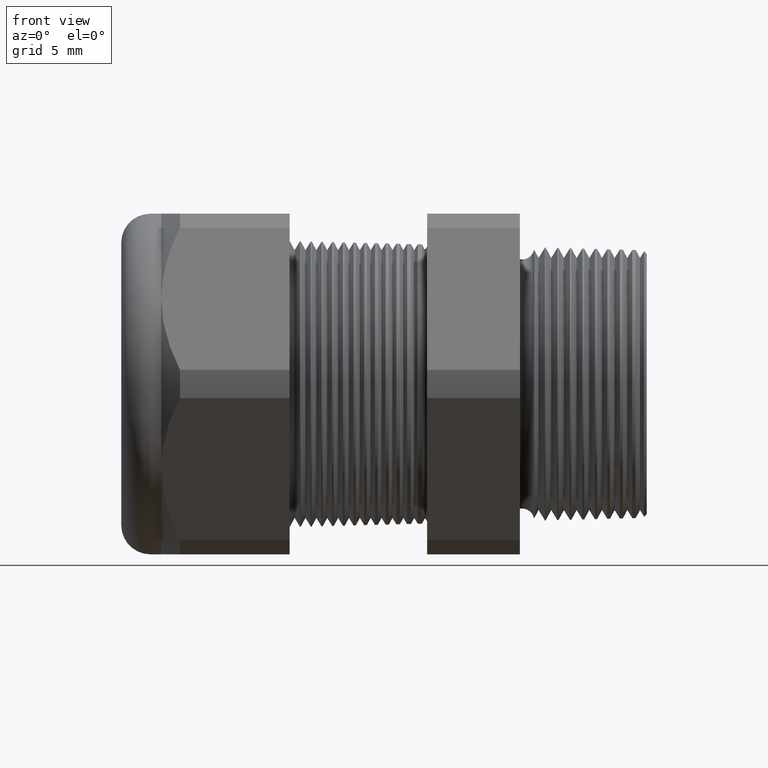
[diagram: clean part render]
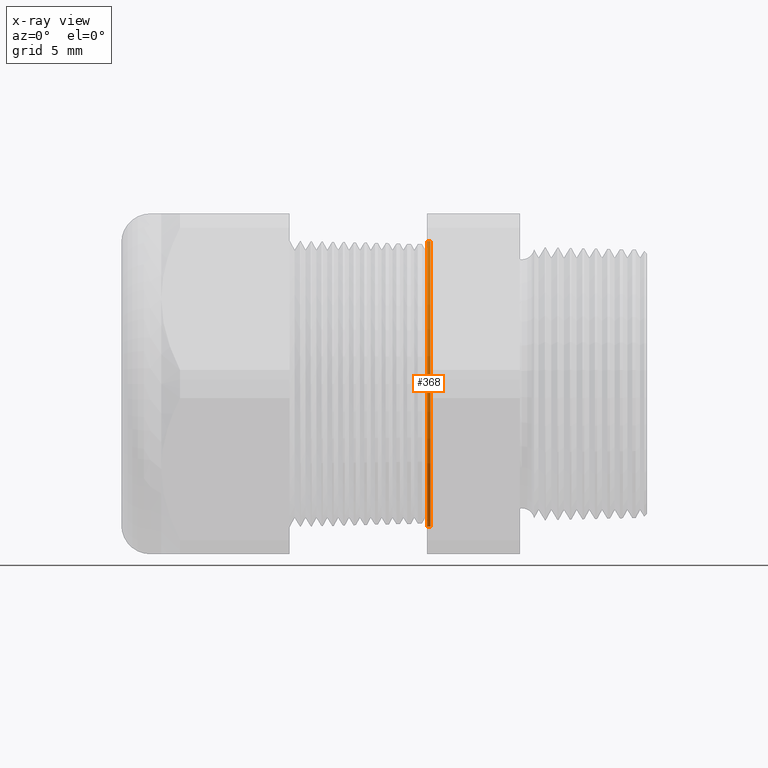
[diagram: x-ray — body ghosted, one internal face saturated and labeled with its STEP entity id]
A machine part, front view, then the same camera in x-ray: the body is ghosted and one INTERNAL B-rep face — a face not visible from any outside direction — is saturated and labeled: STEP entity #368.
In plain terms, the highlighted conical surface has half-angle 1.5 deg.
Its self-contained STEP definition (entity closure, byte-faithful):
#368 = ADVANCED_FACE ( 'NONE', ( #2508 ), #2507, .F. ) ;
#371 = EDGE_LOOP ( 'NONE', ( #380, #384, #387, #390 ) ) ;
#380 = ORIENTED_EDGE ( 'NONE', *, *, #381, .T. ) ;
#381 = EDGE_CURVE ( 'NONE', #382, #383, #2550, .T. ) ;
#382 = VERTEX_POINT ( 'NONE', #2545 ) ;
#383 = VERTEX_POINT ( 'NONE', #2544 ) ;
#384 = ORIENTED_EDGE ( 'NONE', *, *, #385, .T. ) ;
#385 = EDGE_CURVE ( 'NONE', #383, #386, #2543, .T. ) ;
#386 = VERTEX_POINT ( 'NONE', #2539 ) ;
#387 = ORIENTED_EDGE ( 'NONE', *, *, #388, .T. ) ;
#388 = EDGE_CURVE ( 'NONE', #386, #389, #2538, .T. ) ;
#389 = VERTEX_POINT ( 'NONE', #2533 ) ;
#390 = ORIENTED_EDGE ( 'NONE', *, *, #391, .F. ) ;
#391 = EDGE_CURVE ( 'NONE', #382, #389, #2532, .T. ) ;
#2503 = DIRECTION ( 'NONE',  ( 0.0000000000000000000, 0.0000000000000000000, 1.000000000000000000 ) ) ;
#2504 = DIRECTION ( 'NONE',  ( -1.000000000000000000, 0.0000000000000000000, 0.0000000000000000000 ) ) ;
#2505 = AXIS2_PLACEMENT_3D ( 'NONE', #2513, #2504, #2503 ) ;
#2507 = CONICAL_SURFACE ( 'NONE', #2505, 0.3942443365923946100, 0.02617993877990548700 ) ;
#2508 = FACE_OUTER_BOUND ( 'NONE', #371, .T. ) ;
#2513 = CARTESIAN_POINT ( 'NONE',  ( -0.5565754495825407900, 0.0000000000000000000, 0.0000000000000000000 ) ) ;
#2529 = DIRECTION ( 'NONE',  ( -0.9996573249755575900, 0.0000000000000000000, 0.02617694830786370200 ) ) ;
#2530 = VECTOR ( 'NONE', #2529, 39.37007874015748900 ) ;
#2531 = CARTESIAN_POINT ( 'NONE',  ( -0.5565754495825407900, 0.0000000000000000000, 0.3942443365923946100 ) ) ;
#2532 = LINE ( 'NONE', #2531, #2530 ) ;
#2533 = CARTESIAN_POINT ( 'NONE',  ( -0.5659055118110234400, 0.0000000000000000000, 0.3944886528701452300 ) ) ;
#2534 = DIRECTION ( 'NONE',  ( 0.0000000000000000000, 0.0000000000000000000, 1.000000000000000000 ) ) ;
#2535 = DIRECTION ( 'NONE',  ( -1.000000000000000000, 0.0000000000000000000, 0.0000000000000000000 ) ) ;
#2536 = CARTESIAN_POINT ( 'NONE',  ( -0.5659055118110234400, 0.0000000000000000000, 0.0000000000000000000 ) ) ;
#2537 = AXIS2_PLACEMENT_3D ( 'NONE', #2536, #2535, #2534 ) ;
#2538 = CIRCLE ( 'NONE', #2537, 0.3944886528701452800 ) ;
#2539 = CARTESIAN_POINT ( 'NONE',  ( -0.5659055118110234400, 4.831092660373746600E-017, -0.3944886528701452300 ) ) ;
#2540 = DIRECTION ( 'NONE',  ( -0.9996573249755575900, 3.205751595667100700E-018, -0.02617694830786370200 ) ) ;
#2541 = VECTOR ( 'NONE', #2540, 39.37007874015748900 ) ;
#2542 = CARTESIAN_POINT ( 'NONE',  ( -0.5565754495825407900, 4.828100648898478500E-017, -0.3942443365923946100 ) ) ;
#2543 = LINE ( 'NONE', #2542, #2541 ) ;
#2544 = CARTESIAN_POINT ( 'NONE',  ( -0.5565754495825407900, 0.0000000000000000000, -0.3942443365923946100 ) ) ;
#2545 = CARTESIAN_POINT ( 'NONE',  ( -0.5565754495825407900, 4.828100648898477900E-017, 0.3942443365923946100 ) ) ;
#2546 = DIRECTION ( 'NONE',  ( 0.0000000000000000000, 0.0000000000000000000, -1.000000000000000000 ) ) ;
#2547 = DIRECTION ( 'NONE',  ( 1.000000000000000000, 0.0000000000000000000, 0.0000000000000000000 ) ) ;
#2548 = CARTESIAN_POINT ( 'NONE',  ( -0.5565754495825407900, 0.0000000000000000000, 0.0000000000000000000 ) ) ;
#2549 = AXIS2_PLACEMENT_3D ( 'NONE', #2548, #2547, #2546 ) ;
#2550 = CIRCLE ( 'NONE', #2549, 0.3942443365923946100 ) ;